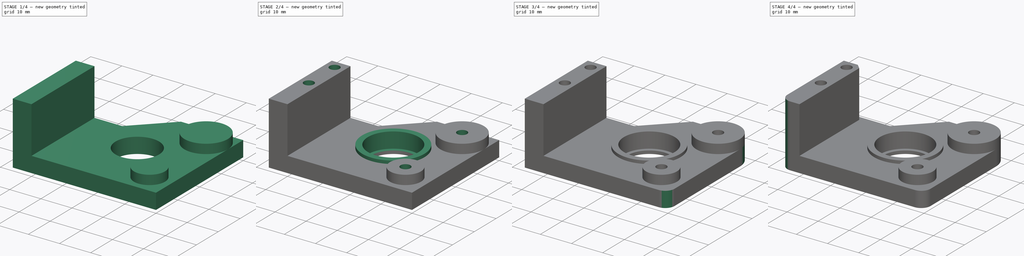
[diagram: build sequence overview — one tinted view per stage of 4, left to right]
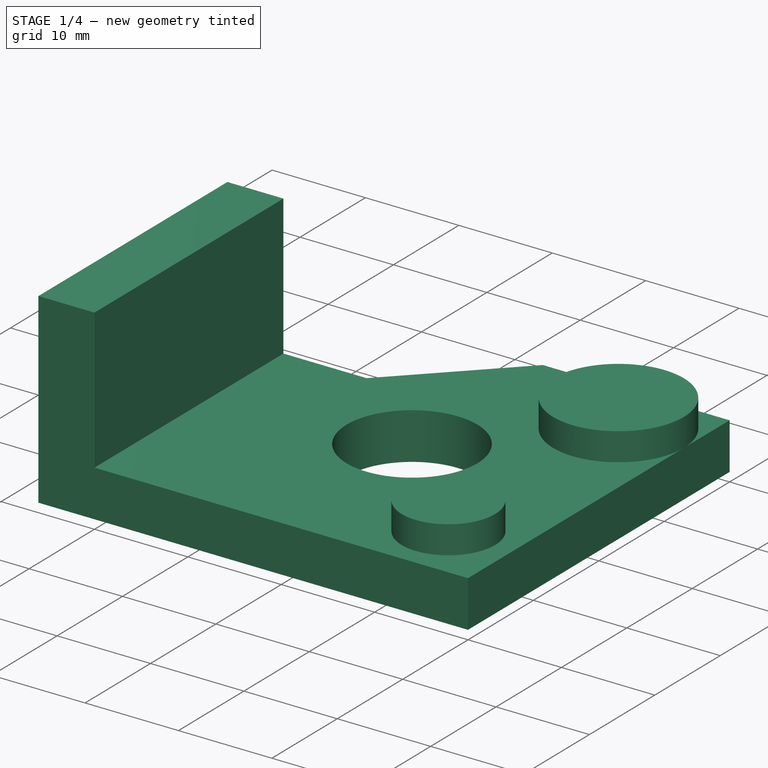
[diagram: stage 1 of 4 — iso view after this stage's code; geometry added in this stage tinted green]
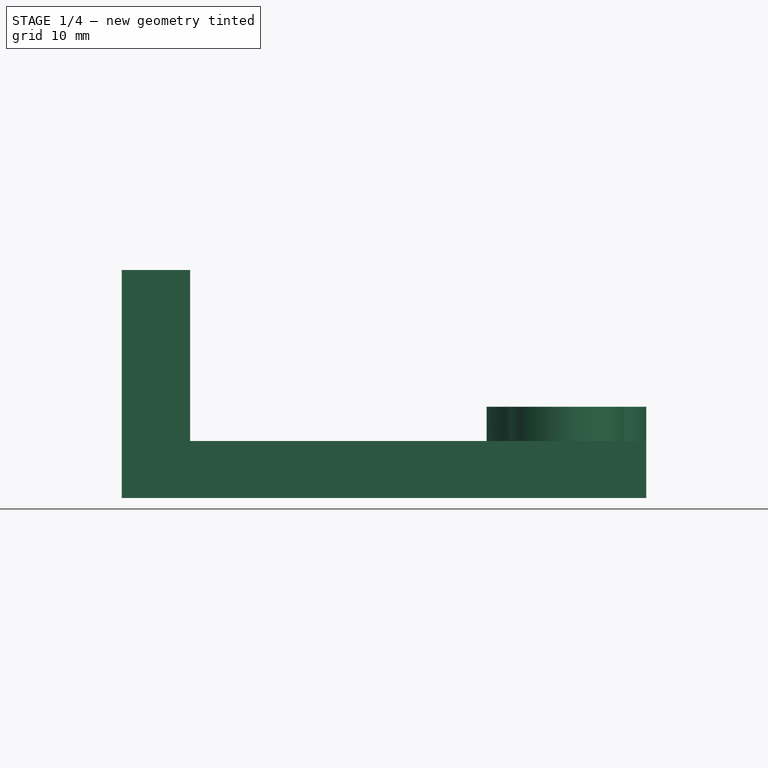
[diagram: stage 1 of 4 — front view after this stage's code; geometry added in this stage tinted green]
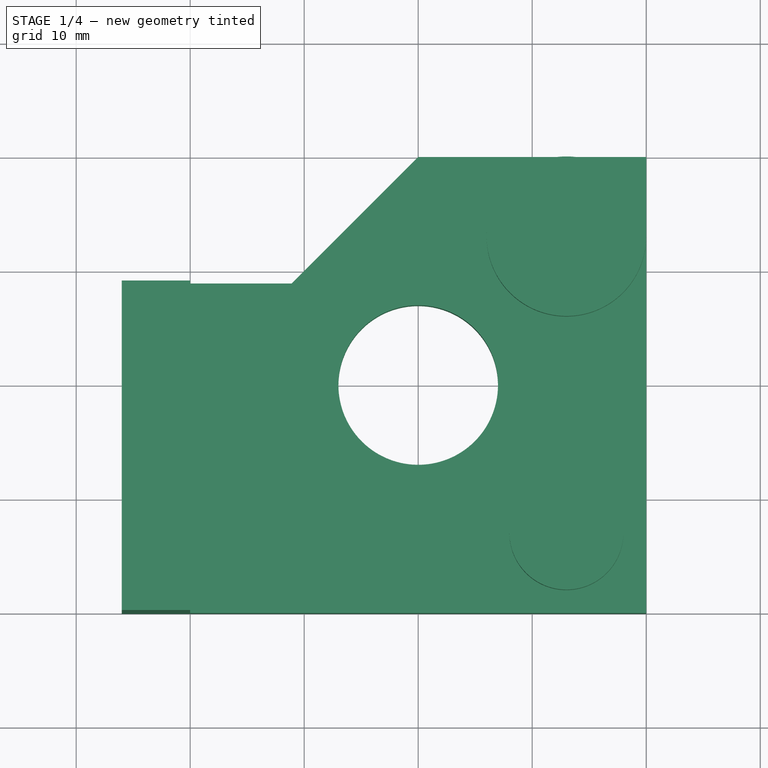
[diagram: stage 1 of 4 — top view after this stage's code; geometry added in this stage tinted green]
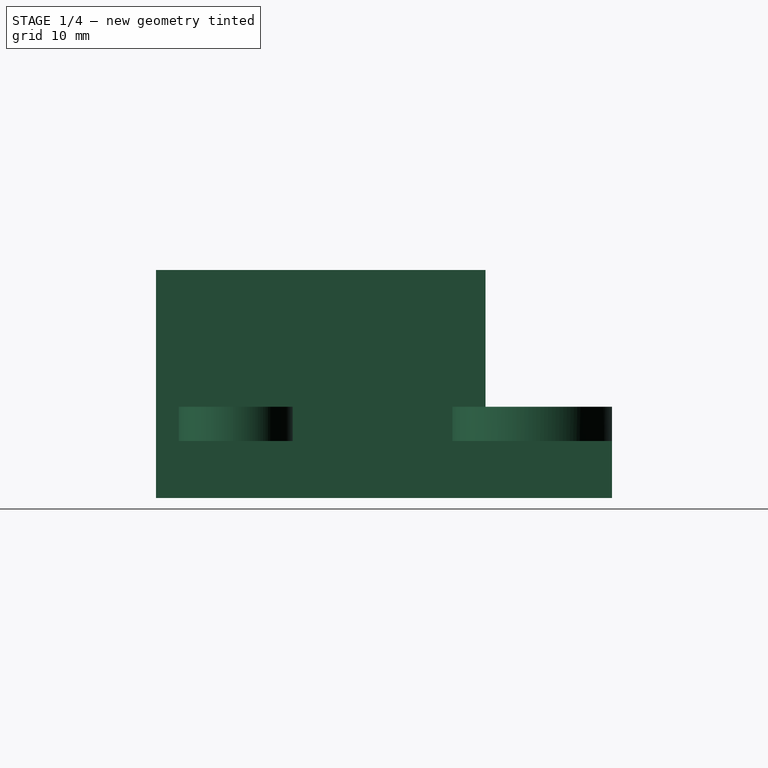
[diagram: stage 1 of 4 — right view after this stage's code; geometry added in this stage tinted green]
FCSTD DOCUMENT  (FreeCAD 0.18R15441 (Git))
Label: DriveIdler_Cover_625zz
License: All rights reserved
LicenseURL: http://en.wikipedia.org/wiki/All_rights_reserved
objects: Sketcher::SketchObject×6, PartDesign::Pad×4, PartDesign::Fillet×3, PartDesign::Pocket×2, PartDesign::Chamfer×1, PartDesign::Body×1, Part::FeaturePython×1, App::Part×1
note: 24 computed .brp shape members not serialized (recipe doc carries the construction recipe); baked Part::Feature solids carry a one-line shape summary decoded from their .brp

FEATURE [Sketcher::SketchObject] Sketch  label="BaseCoverSketch"
  MapMode = 5
  Support = -> [XY_Plane001]
  sketch-geometry (10):
    g0: LineSegment StartX=-26 StartY=0 StartZ=0 EndX=-26 EndY=-20 EndZ=0
    g1: LineSegment StartX=-26 StartY=-20 StartZ=0 EndX=0 EndY=-20 EndZ=0
    g2: LineSegment StartX=0 StartY=-20 StartZ=0 EndX=20 EndY=-20 EndZ=0
    g3: LineSegment StartX=20 StartY=-20 StartZ=0 EndX=20 EndY=0 EndZ=0
    g4: LineSegment StartX=20 StartY=0 StartZ=0 EndX=20 EndY=20 EndZ=0
    g5: LineSegment StartX=20 StartY=20 StartZ=0 EndX=0 EndY=20 EndZ=0
    g6: Circle CenterX=0 CenterY=0 CenterZ=0 NormalX=0 NormalY=0 NormalZ=1 AngleXU=0 Radius=7
    g7: LineSegment StartX=-26 StartY=0 StartZ=0 EndX=-26 EndY=8.9 EndZ=0
    g8: LineSegment StartX=-11.1 StartY=8.9 StartZ=0 EndX=0 EndY=20 EndZ=0
    g9: LineSegment StartX=-26 StartY=8.9 StartZ=0 EndX=-11.1 EndY=8.9 EndZ=0
  constraints (29):
    c: PointOnObject(g5,g-2)
    c: PointOnObject(g0,g-1)
    c: Vertical(g0)
    c: Coincident(g1,g0)
    c: PointOnObject(g1,g-2)
    c: Horizontal(g1)
    c: Coincident(g2,g1)
    c: Horizontal(g2)
    c: Coincident(g3,g2)
    c: PointOnObject(g3,g-1)
    c: Vertical(g3)
    c: Coincident(g4,g3)
    c: Vertical(g4)
    c: Coincident(g5,g4)
    c: Horizontal(g5)
    c: Distance(g4,g2) = 40
    c: Distance(g5) = 20
    c: Equal(g4,g3)
    c: Coincident(g6,g-1)
    c: Radius(g6) = 7
    c: Coincident(g7,g0)
    c: Vertical(g7)
    c: Coincident(g8,g5)
    c: Distance(g7) = 8.9
    c: Distance(g5,g7) = 26
    c: Coincident(g9,g7)
    c: Coincident(g9,g8)
    c: Horizontal(g9)
    c: Angle(g8,g5) = 2.35619
FEATURE [PartDesign::Pad] Pad  label="BaseCoverPad"
  Length = 5
  Length2 = 100
  Profile = -> Sketch
  Reversed = true
  Type = 0
FEATURE [Sketcher::SketchObject] Sketch001  label="ClipNotchSketch"
  ExternalGeometry = -> [Sketch]
  MapMode = 5
  Support = -> [XY_Plane001]
  sketch-geometry (2):
    g0: Circle CenterX=13 CenterY=-13 CenterZ=0 NormalX=0 NormalY=0 NormalZ=1 AngleXU=0 Radius=5
    g1: Circle CenterX=13 CenterY=13 CenterZ=0 NormalX=0 NormalY=0 NormalZ=1 AngleXU=0 Radius=7
  constraints (6):
    c: Radius(g0) = 5
    c: Radius(g1) = 7
    c: DistanceY(g1,g-5) = 7
    c: DistanceX(g1,g-5) = 7
    c: DistanceX(g0,g-6) = 7
    c: DistanceY(g-6,g0) = 7
FEATURE [PartDesign::Pad] Pad001  label="ClipNotchPad"
  BaseFeature = -> Pad
  Length = 3
  Length2 = 100
  Profile = -> Sketch001
  Type = 0
FEATURE [Sketcher::SketchObject] Sketch003  label="BearingClipHoleSketch"
  MapMode = 5
  Support = -> [XY_Plane001]
  sketch-geometry (1):
    g0: Circle CenterX=0 CenterY=0 CenterZ=0 NormalX=0 NormalY=0 NormalZ=1 AngleXU=0 Radius=8.15
  constraints (2):
    c: Coincident(g0,g-1)
    c: Radius(g0) = 8.15
FEATURE [Sketcher::SketchObject] Sketch004  label="SideClipSketch"
  ExternalGeometry = -> [Sketch]
  MapMode = 5
  Support = -> [XY_Plane001]
  sketch-geometry (4):
    g0: LineSegment StartX=-26 StartY=8.9 StartZ=0 EndX=-20 EndY=8.9 EndZ=0
    g1: LineSegment StartX=-20 StartY=8.9 StartZ=0 EndX=-20 EndY=-20 EndZ=0
    g2: LineSegment StartX=-20 StartY=-20 StartZ=0 EndX=-26 EndY=-20 EndZ=0
    g3: LineSegment StartX=-26 StartY=-20 StartZ=0 EndX=-26 EndY=8.9 EndZ=0
  constraints (11):
    c: Coincident(g0,g1)
    c: Coincident(g1,g2)
    c: Coincident(g2,g3)
    c: Coincident(g3,g0)
    c: Horizontal(g0)
    c: Horizontal(g2)
    c: Vertical(g1)
    c: Vertical(g3)
    c: Distance(g0) = 6
    c: DistanceY(g-1,g0) = 8.9
    c: Coincident(g2,g-3)
FEATURE [Sketcher::SketchObject] Sketch002  label="ScrewHolesSketch"
  ExternalGeometry = -> [Sketch001,Sketch004]
  MapMode = 5
  Support = -> [XY_Plane001]
  sketch-geometry (4):
    g0: Circle CenterX=13 CenterY=13 CenterZ=0 NormalX=0 NormalY=0 NormalZ=1 AngleXU=0 Radius=1.6
    g1: Circle CenterX=13 CenterY=-13 CenterZ=0 NormalX=0 NormalY=0 NormalZ=1 AngleXU=0 Radius=1.6
    g2: Circle CenterX=-23 CenterY=5.9 CenterZ=0 NormalX=0 NormalY=0 NormalZ=1 AngleXU=0 Radius=1.6
    g3: Circle CenterX=-23 CenterY=-5.9 CenterZ=0 NormalX=0 NormalY=0 NormalZ=1 AngleXU=0 Radius=1.6
  constraints (9):
    c: Coincident(g0,g-3)
    c: Coincident(g1,g-4)
    c: Equal(g0,g1)
    c: Radius(g0) = 1.6
    c: Symmetric(g2,g3,g-1)
    c: Equal(g2,g0)
    c: Equal(g3,g2)
    c: Distance(g3,g2) = 11.8
    c: Distance(g2,g-5) = 3
FEATURE [PartDesign::Pad] Pad002  label="SideClipPad"
  BaseFeature = -> Pad001
  Length = 15
  Length2 = 100
  Profile = -> Sketch004
  Type = 0
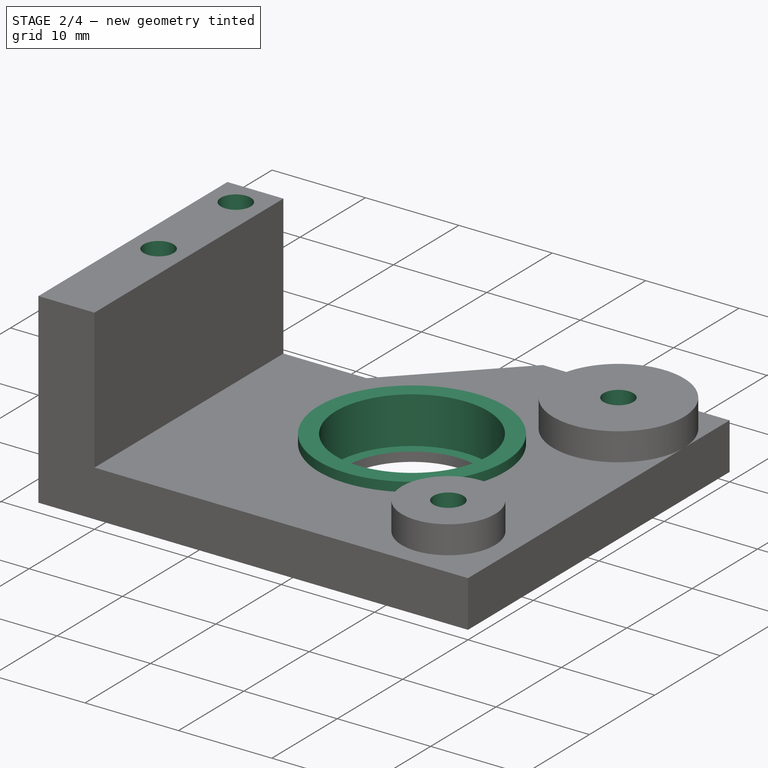
[diagram: stage 2 of 4 — iso view after this stage's code; geometry added in this stage tinted green]
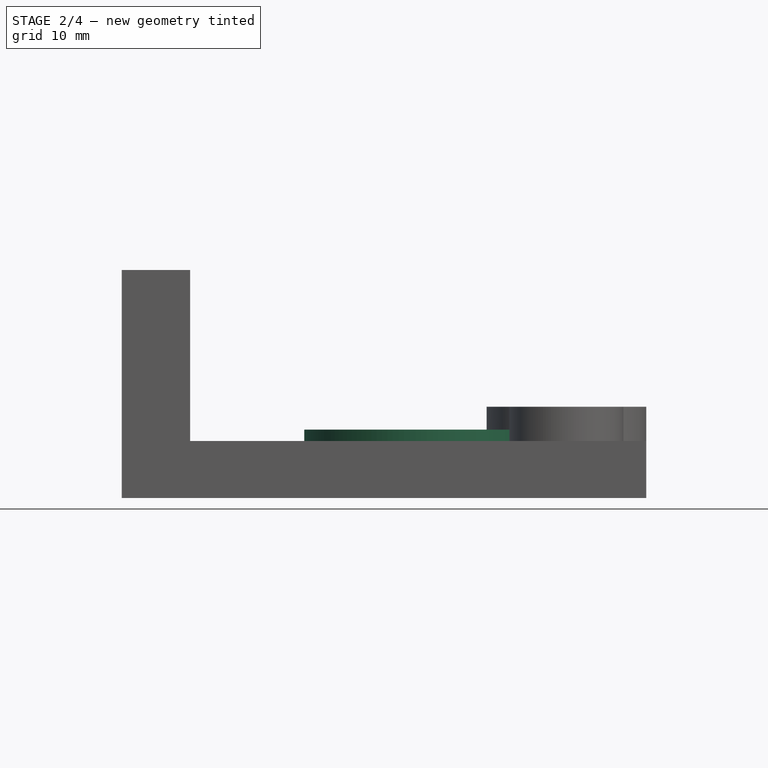
[diagram: stage 2 of 4 — front view after this stage's code; geometry added in this stage tinted green]
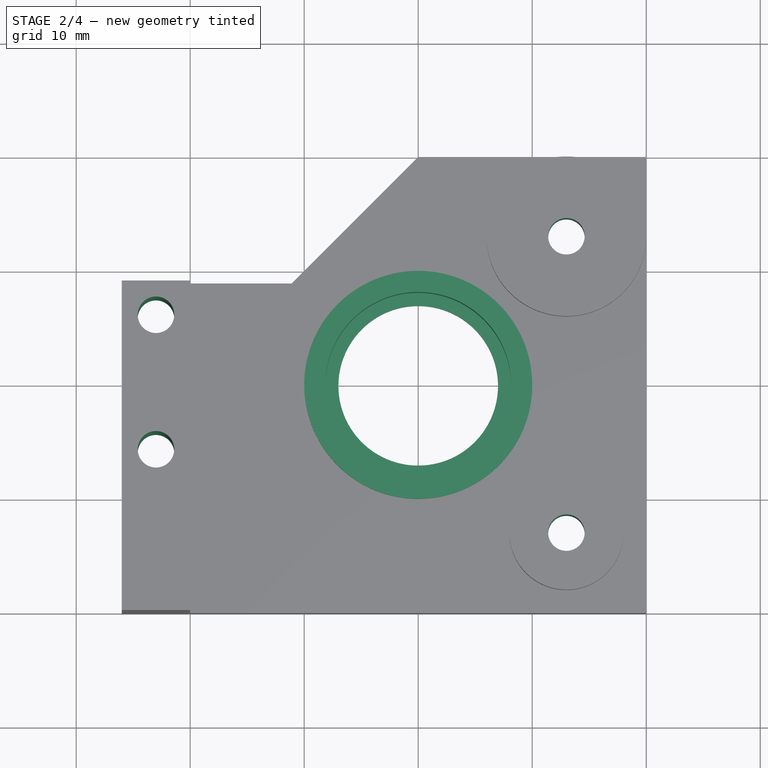
[diagram: stage 2 of 4 — top view after this stage's code; geometry added in this stage tinted green]
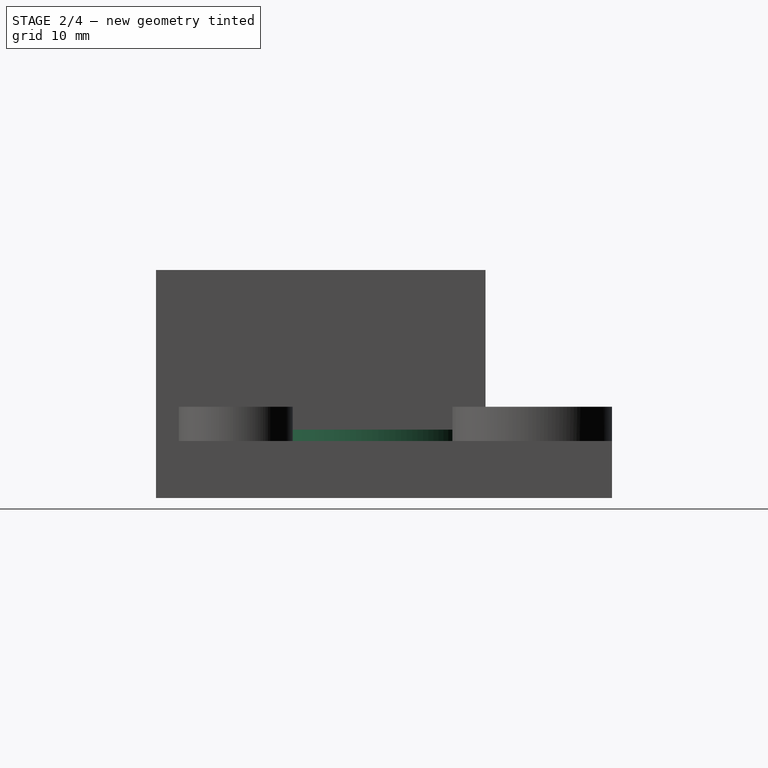
[diagram: stage 2 of 4 — right view after this stage's code; geometry added in this stage tinted green]
FEATURE [PartDesign::Pocket] Pocket  label="ScrewHolesPocket"
  BaseFeature = -> Pad002
  Length = 5
  Length2 = 100
  Midplane = true
  Profile = -> Sketch002
  Type = 1
FEATURE [Sketcher::SketchObject] Sketch005  label="BearingClipSketch"
  MapMode = 5
  Support = -> [XY_Plane001]
  sketch-geometry (1):
    g0: Circle CenterX=0 CenterY=0 CenterZ=0 NormalX=0 NormalY=0 NormalZ=1 AngleXU=0 Radius=10
  constraints (2):
    c: Coincident(g0,g-1)
    c: Radius(g0) = 10
FEATURE [PartDesign::Pad] Pad003  label="BearingClipPad"
  BaseFeature = -> Pocket
  Length = 1
  Length2 = 100
  Profile = -> Sketch005
  Type = 0
FEATURE [PartDesign::Pocket] Pocket001  label="BearingClipHolePocket"
  BaseFeature = -> Pad003
  Length = 4
  Length2 = 100
  Profile = -> Sketch003
  Type = 4
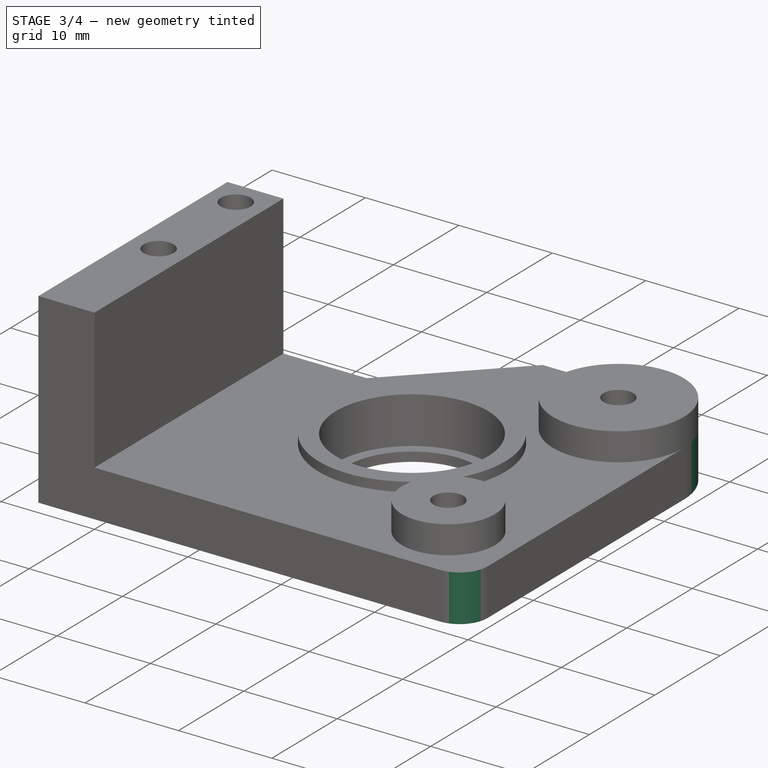
[diagram: stage 3 of 4 — iso view after this stage's code; geometry added in this stage tinted green]
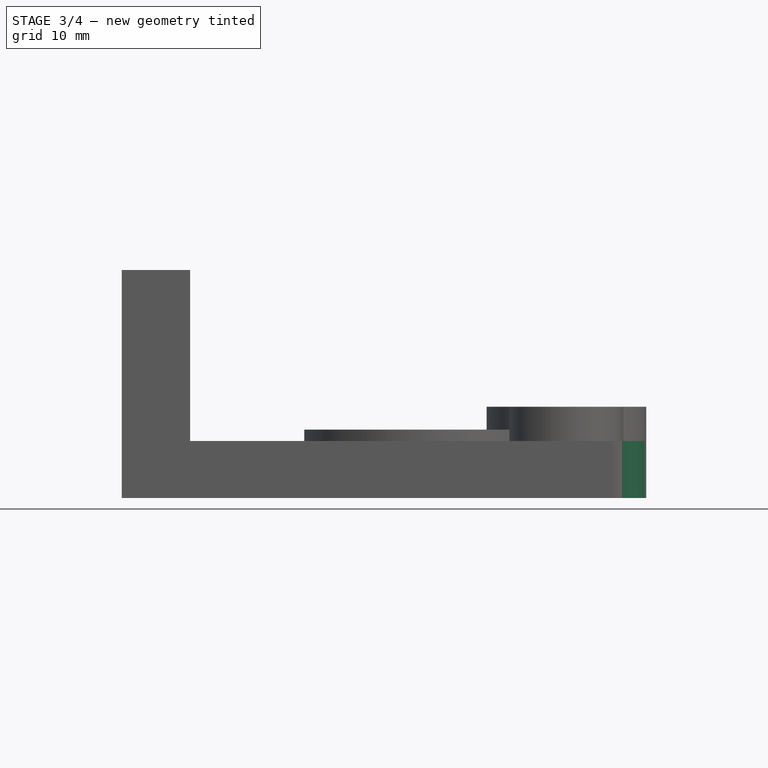
[diagram: stage 3 of 4 — front view after this stage's code; geometry added in this stage tinted green]
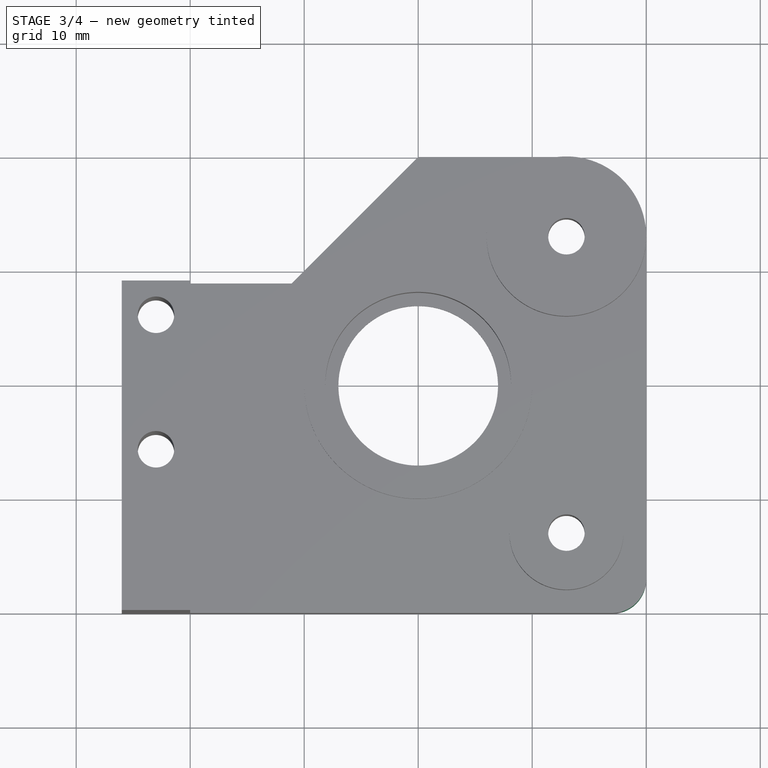
[diagram: stage 3 of 4 — top view after this stage's code; geometry added in this stage tinted green]
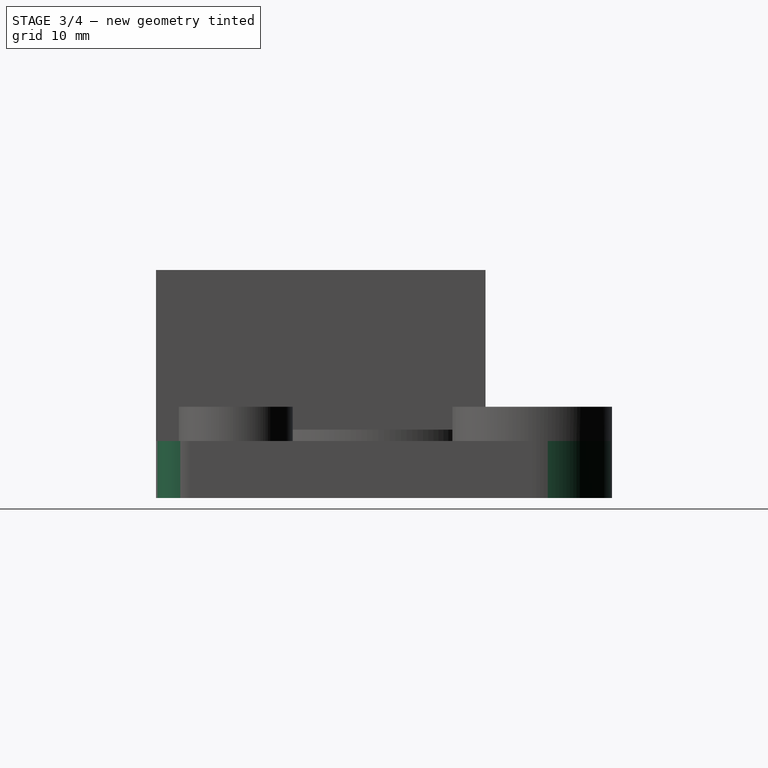
[diagram: stage 3 of 4 — right view after this stage's code; geometry added in this stage tinted green]
FEATURE [PartDesign::Fillet] Fillet  label="Fillet1"
  Base = -> Pocket001 [Edge47]
  BaseFeature = -> Pocket001
  Radius = 7
FEATURE [PartDesign::Fillet] Fillet001  label="Fillet2"
  Base = -> Fillet [Edge28]
  BaseFeature = -> Fillet
  Radius = 3
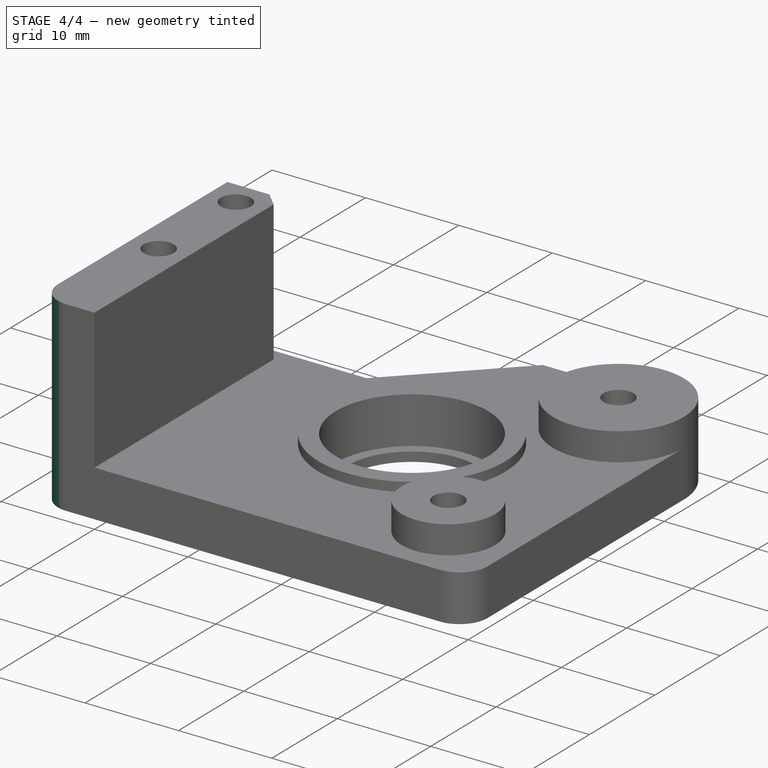
[diagram: stage 4 of 4 — iso view after this stage's code; geometry added in this stage tinted green]
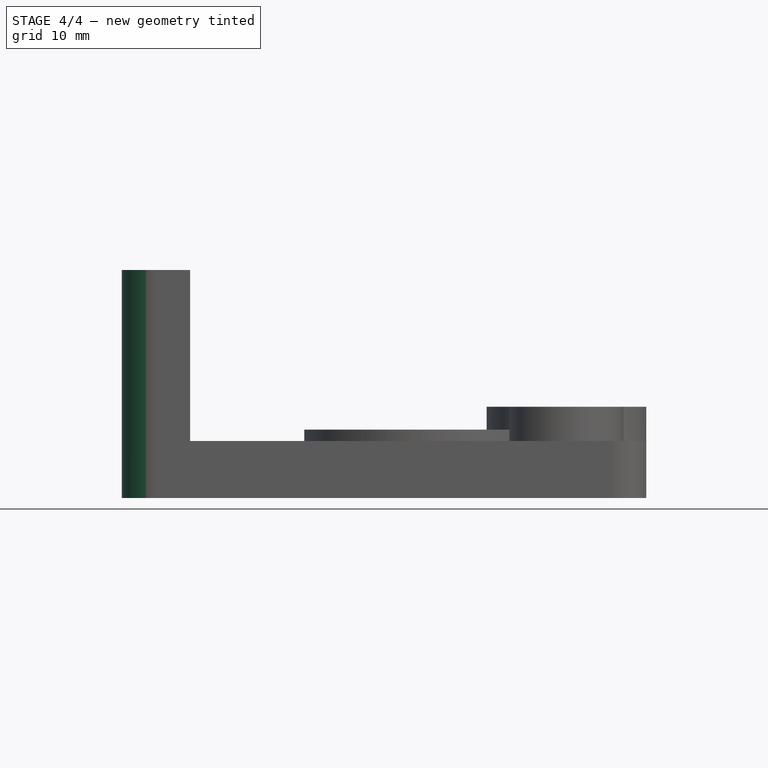
[diagram: stage 4 of 4 — front view after this stage's code; geometry added in this stage tinted green]
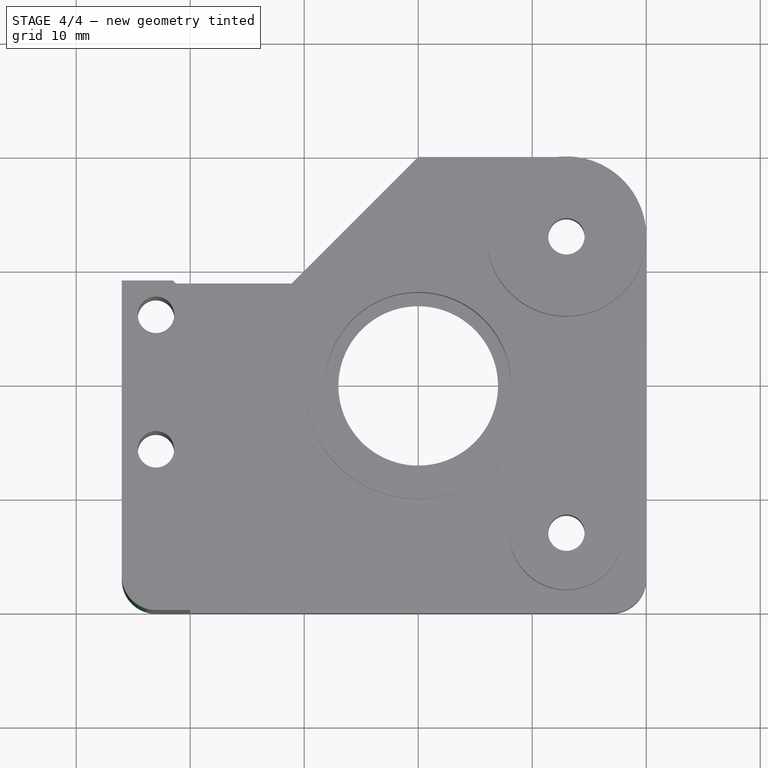
[diagram: stage 4 of 4 — top view after this stage's code; geometry added in this stage tinted green]
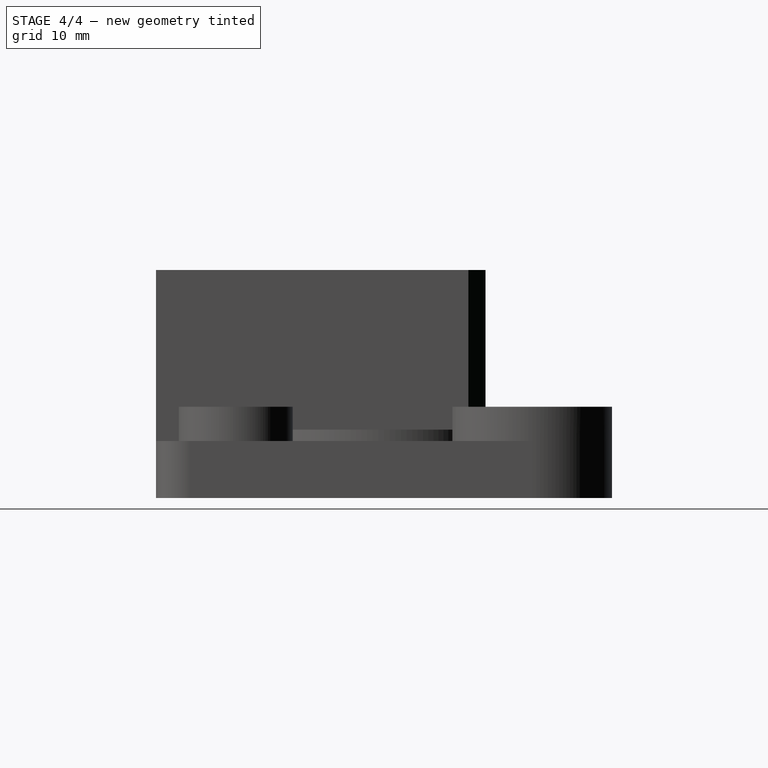
[diagram: stage 4 of 4 — right view after this stage's code; geometry added in this stage tinted green]
FEATURE [PartDesign::Fillet] Fillet002  label="Fillet3"
  Base = -> Fillet001 [Edge57]
  BaseFeature = -> Fillet001
  Radius = 3
FEATURE [PartDesign::Chamfer] Chamfer
  Base = -> Fillet002 [Edge65]
  BaseFeature = -> Fillet002
  Size = 1.5
FEATURE [PartDesign::Body] Body  label="CoverBody"
  Group = -> [Sketch,Pad,Sketch001,Pad001,Pad002,Sketch002,Pocket,Pad003,Sketch003,Pocket001,Sketch004,Sketch005,Fillet,Fillet001,Fillet002,Chamfer]
  Origin = -> Origin001
  Tip = -> Chamfer
FEATURE [Part::FeaturePython] refine  label="CoverBody_Refined"  # WARN: FeaturePython — macro-defined, semantics opaque (R4)
  Base = -> Body
FEATURE [App::Part] Part  label="CoverPart"
  Group = -> [Body,refine]
  License = CC BY 3.0
  LicenseURL = http://creativecommons.org/licenses/by/3.0/
  Origin = -> Origin
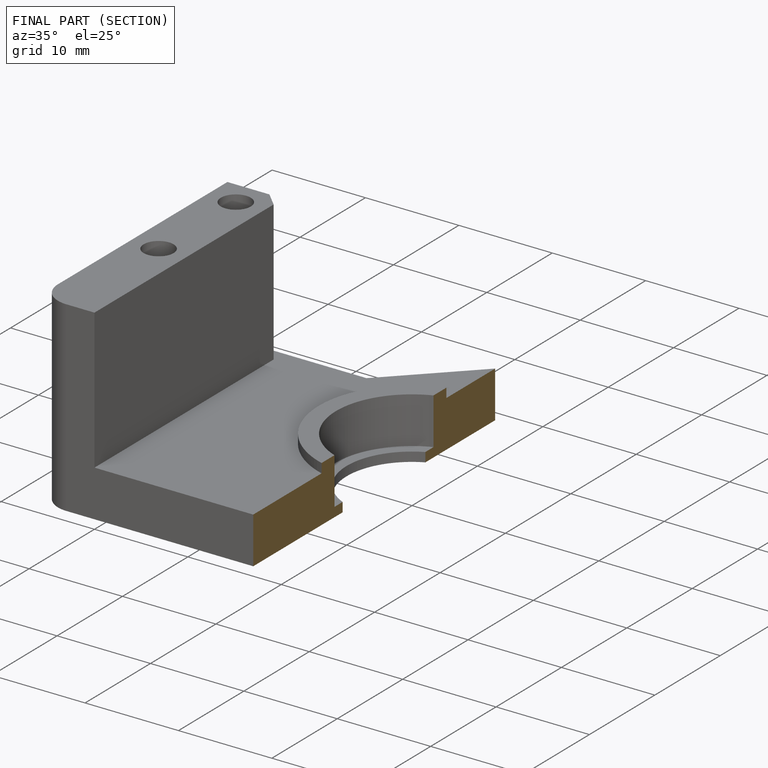
[diagram: finished part — half-section view (interior)]
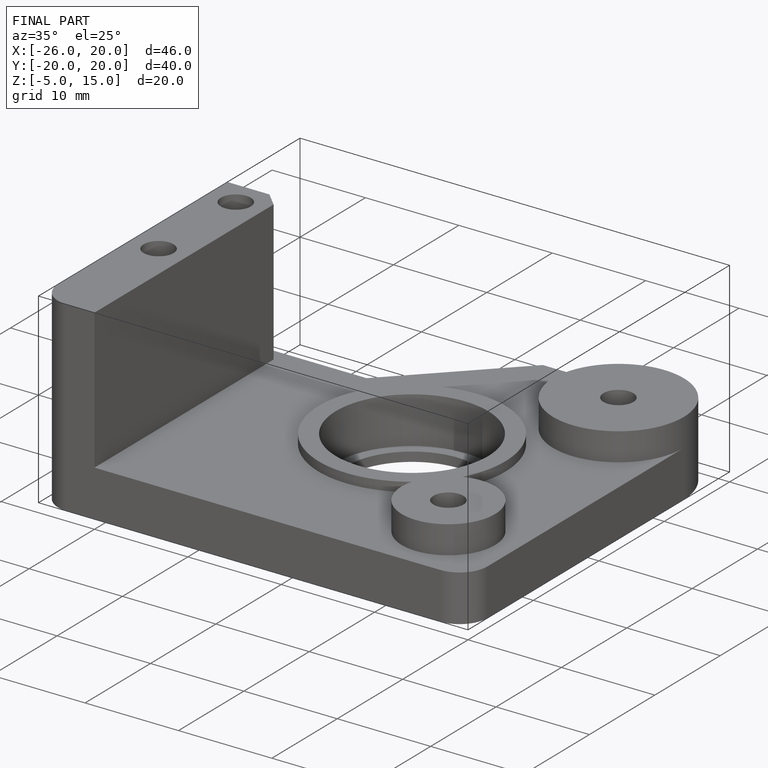
[diagram: finished part — iso view with bounding-box wireframe]
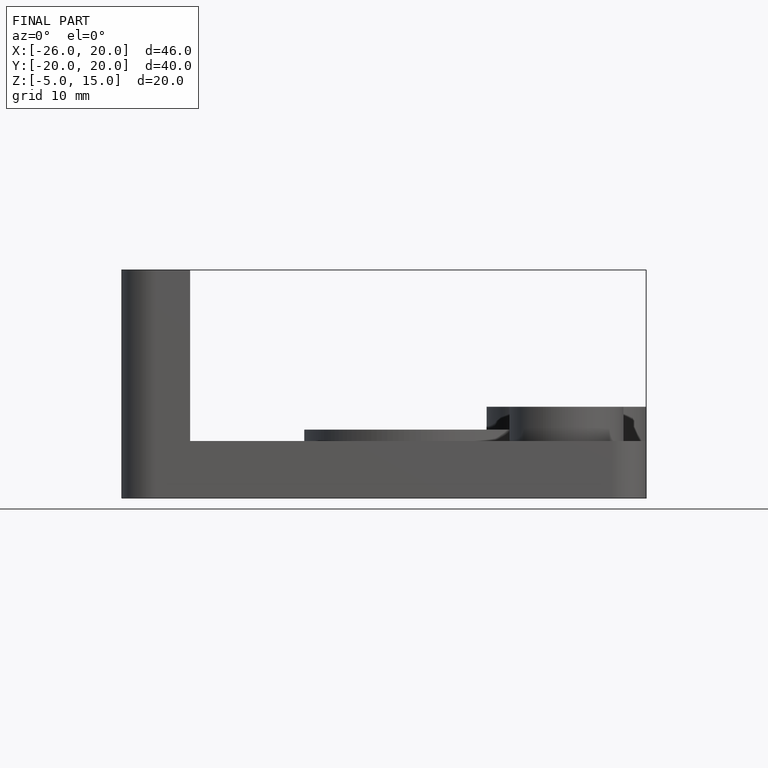
[diagram: finished part — front view with bounding-box wireframe]
